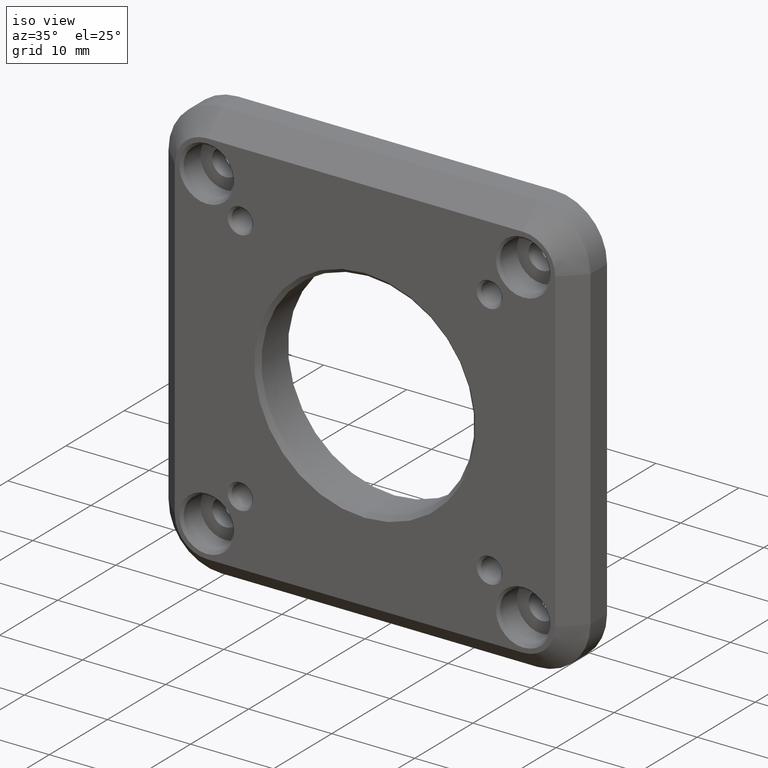
[diagram: clean part render]
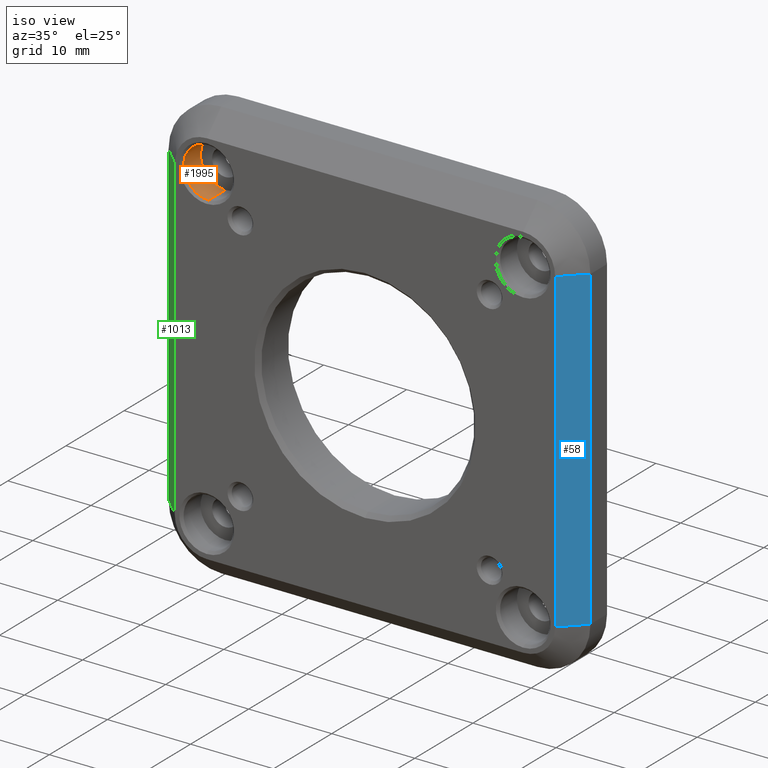
[diagram: same view with three faces highlighted in distinct colors, each labeled with its STEP entity id]
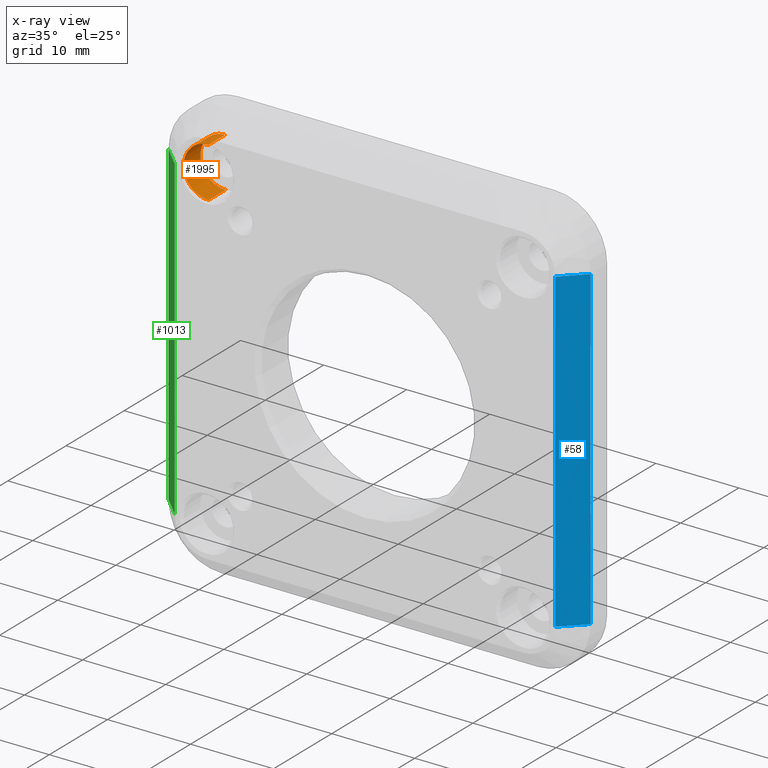
[diagram: x-ray of the same camera — body ghosted, the three highlighted faces saturated]
A machine part, iso view with three faces highlighted in distinct colors.
The next image is the same camera in x-ray (body ghosted, the three faces saturated) — at least one of them is partly hidden behind the body in this view.
Their STEP definitions:

[orange] entity #1995 — the highlighted cylindrical surface (edge-blend (fillet) strip) has radius 3 mm, axis along (-0, -1, -0).
#48 = DIRECTION ( 'NONE',  ( -0.000000000000000000, -1.000000000000000000, -0.000000000000000000 ) ) ;
#61 = CARTESIAN_POINT ( 'NONE',  ( -19.05000000000000071, 0.000000000000000000, 16.05000000000000426 ) ) ;
#78 = ORIENTED_EDGE ( 'NONE', *, *, #80, .T. ) ;
#80 = EDGE_CURVE ( 'NONE', #612, #3253, #782, .T. ) ;
#81 = VECTOR ( 'NONE', #3507, 1000.000000000000000 ) ;
#396 = ORIENTED_EDGE ( 'NONE', *, *, #1166, .T. ) ;
#434 = CARTESIAN_POINT ( 'NONE',  ( -19.05000000000000071, 0.000000000000000000, 22.04999999999999716 ) ) ;
#527 = CIRCLE ( 'NONE', #3197, 2.999999999999995559 ) ;
#612 = VERTEX_POINT ( 'NONE', #1746 ) ;
#782 = CIRCLE ( 'NONE', #3192, 2.999999999999995559 ) ;
#898 = LINE ( 'NONE', #61, #81 ) ;
#930 = CARTESIAN_POINT ( 'NONE',  ( -19.05000000000000071, 0.000000000000000000, 19.05000000000000071 ) ) ;
#1000 = EDGE_CURVE ( 'NONE', #3950, #3253, #898, .T. ) ;
#1166 = EDGE_CURVE ( 'NONE', #3105, #612, #2849, .T. ) ;
#1550 = AXIS2_PLACEMENT_3D ( 'NONE', #930, #48, #4055 ) ;
#1579 = CYLINDRICAL_SURFACE ( 'NONE', #1550, 2.999999999999995559 ) ;
#1735 = EDGE_LOOP ( 'NONE', ( #3653, #396, #78, #3225 ) ) ;
#1737 = DIRECTION ( 'NONE',  ( 0.000000000000000000, 0.000000000000000000, -1.000000000000000000 ) ) ;
#1746 = CARTESIAN_POINT ( 'NONE',  ( -19.05000000000000071, 0.3000000000000116462, 22.04999999999999716 ) ) ;
#1777 = DIRECTION ( 'NONE',  ( -0.000000000000000000, -1.000000000000000000, -0.000000000000000000 ) ) ;
#1828 = DIRECTION ( 'NONE',  ( 0.000000000000000000, -1.000000000000000000, 0.000000000000000000 ) ) ;
#1995 = ADVANCED_FACE ( 'NONE', ( #2982 ), #1579, .F. ) ;
#2163 = DIRECTION ( 'NONE',  ( 0.000000000000000000, 0.000000000000000000, 1.000000000000000000 ) ) ;
#2547 = CARTESIAN_POINT ( 'NONE',  ( -19.05000000000000071, 3.200000000000001510, 22.04999999999999716 ) ) ;
#2849 = LINE ( 'NONE', #434, #3982 ) ;
#2982 = FACE_OUTER_BOUND ( 'NONE', #1735, .T. ) ;
#3000 = CARTESIAN_POINT ( 'NONE',  ( -19.05000000000000071, 3.200000000000001510, 16.05000000000000426 ) ) ;
#3105 = VERTEX_POINT ( 'NONE', #2547 ) ;
#3177 = EDGE_CURVE ( 'NONE', #3105, #3950, #527, .T. ) ;
#3192 = AXIS2_PLACEMENT_3D ( 'NONE', #3384, #1828, #2163 ) ;
#3197 = AXIS2_PLACEMENT_3D ( 'NONE', #3627, #1777, #1737 ) ;
#3225 = ORIENTED_EDGE ( 'NONE', *, *, #1000, .F. ) ;
#3250 = CARTESIAN_POINT ( 'NONE',  ( -19.05000000000000071, 0.3000000000000116462, 16.05000000000000426 ) ) ;
#3253 = VERTEX_POINT ( 'NONE', #3250 ) ;
#3384 = CARTESIAN_POINT ( 'NONE',  ( -19.05000000000000071, 0.3000000000000116462, 19.05000000000000071 ) ) ;
#3507 = DIRECTION ( 'NONE',  ( -0.000000000000000000, -1.000000000000000000, -0.000000000000000000 ) ) ;
#3627 = CARTESIAN_POINT ( 'NONE',  ( -19.05000000000000071, 3.200000000000001510, 19.05000000000000071 ) ) ;
#3653 = ORIENTED_EDGE ( 'NONE', *, *, #3177, .F. ) ;
#3881 = DIRECTION ( 'NONE',  ( -0.000000000000000000, -1.000000000000000000, -0.000000000000000000 ) ) ;
#3950 = VERTEX_POINT ( 'NONE', #3000 ) ;
#3982 = VECTOR ( 'NONE', #3881, 1000.000000000000000 ) ;
#4055 = DIRECTION ( 'NONE',  ( 0.000000000000000000, 0.000000000000000000, -1.000000000000000000 ) ) ;

[blue] entity #58 — the highlighted planar face has unit normal (-0.7071, 0.7071, 0).
#58 = ADVANCED_FACE ( 'NONE', ( #1532 ), #3313, .F. ) ;
#59 = DIRECTION ( 'NONE',  ( -0.7071067811865489050, -0.7071067811865462405, 1.287805494327245209E-16 ) ) ;
#128 = LINE ( 'NONE', #3805, #358 ) ;
#254 = CARTESIAN_POINT ( 'NONE',  ( 22.89999999999999503, 0.000000000000000000, -19.04999999999999716 ) ) ;
#358 = VECTOR ( 'NONE', #59, 999.9999999999998863 ) ;
#453 = ORIENTED_EDGE ( 'NONE', *, *, #3297, .F. ) ;
#613 = CARTESIAN_POINT ( 'NONE',  ( 22.90000000000000213, 1.734723475976801178E-15, 19.05000000000000782 ) ) ;
#614 = ORIENTED_EDGE ( 'NONE', *, *, #3529, .T. ) ;
#638 = LINE ( 'NONE', #3470, #1590 ) ;
#927 = VECTOR ( 'NONE', #3392, 1000.000000000000000 ) ;
#936 = VERTEX_POINT ( 'NONE', #1887 ) ;
#1054 = LINE ( 'NONE', #613, #1505 ) ;
#1088 = VERTEX_POINT ( 'NONE', #2532 ) ;
#1493 = VERTEX_POINT ( 'NONE', #3480 ) ;
#1505 = VECTOR ( 'NONE', #4044, 1000.000000000000000 ) ;
#1518 = CARTESIAN_POINT ( 'NONE',  ( 22.89999999999999503, 0.000000000000000000, -19.04999999999999716 ) ) ;
#1532 = FACE_OUTER_BOUND ( 'NONE', #2709, .T. ) ;
#1564 = VERTEX_POINT ( 'NONE', #2263 ) ;
#1577 = EDGE_CURVE ( 'NONE', #936, #1088, #638, .T. ) ;
#1590 = VECTOR ( 'NONE', #1604, 1000.000000000000000 ) ;
#1604 = DIRECTION ( 'NONE',  ( 1.365923996832131609E-16, -4.553079989440418360E-17, 1.000000000000000000 ) ) ;
#1787 = AXIS2_PLACEMENT_3D ( 'NONE', #1518, #4027, #3702 ) ;
#1887 = CARTESIAN_POINT ( 'NONE',  ( 25.39999999999999858, 2.499999999999993783, -19.04999999999999716 ) ) ;
#1892 = EDGE_CURVE ( 'NONE', #1564, #1493, #2119, .T. ) ;
#2119 = LINE ( 'NONE', #254, #927 ) ;
#2263 = CARTESIAN_POINT ( 'NONE',  ( 22.89999999999999503, 0.000000000000000000, -19.04999999999999716 ) ) ;
#2532 = CARTESIAN_POINT ( 'NONE',  ( 25.40000000000000213, 2.499999999999989342, 19.05000000000000782 ) ) ;
#2709 = EDGE_LOOP ( 'NONE', ( #3708, #614, #3665, #453 ) ) ;
#3297 = EDGE_CURVE ( 'NONE', #936, #1564, #128, .T. ) ;
#3313 = PLANE ( 'NONE',  #1787 ) ;
#3392 = DIRECTION ( 'NONE',  ( 1.821231995776174986E-16, 0.000000000000000000, 1.000000000000000000 ) ) ;
#3470 = CARTESIAN_POINT ( 'NONE',  ( 25.39999999999999503, 2.499999999999991118, -25.39999999999999503 ) ) ;
#3480 = CARTESIAN_POINT ( 'NONE',  ( 22.90000000000000213, 0.000000000000000000, 19.05000000000000782 ) ) ;
#3529 = EDGE_CURVE ( 'NONE', #1088, #1493, #1054, .T. ) ;
#3665 = ORIENTED_EDGE ( 'NONE', *, *, #1892, .F. ) ;
#3702 = DIRECTION ( 'NONE',  ( -0.7071067811865489050, -0.7071067811865462405, 0.000000000000000000 ) ) ;
#3708 = ORIENTED_EDGE ( 'NONE', *, *, #1577, .T. ) ;
#3805 = CARTESIAN_POINT ( 'NONE',  ( 22.89999999999999503, 0.000000000000000000, -19.04999999999999716 ) ) ;
#4027 = DIRECTION ( 'NONE',  ( -0.7071067811865462405, 0.7071067811865489050, 1.287805494327240771E-16 ) ) ;
#4044 = DIRECTION ( 'NONE',  ( -0.7071067811865489050, -0.7071067811865462405, -0.000000000000000000 ) ) ;

[green] entity #1013 — the highlighted planar face has unit normal (0.7071, 0.7071, -0).
#52 = CARTESIAN_POINT ( 'NONE',  ( -22.89999999999999503, 0.000000000000000000, 19.05000000000000782 ) ) ;
#66 = EDGE_LOOP ( 'NONE', ( #1439, #3380, #3210, #2851 ) ) ;
#202 = VECTOR ( 'NONE', #458, 1000.000000000000000 ) ;
#246 = LINE ( 'NONE', #685, #746 ) ;
#339 = CARTESIAN_POINT ( 'NONE',  ( -25.40000000000000213, 2.499999999999988454, -25.39999999999999503 ) ) ;
#458 = DIRECTION ( 'NONE',  ( 0.7071067811865489050, -0.7071067811865462405, -0.000000000000000000 ) ) ;
#636 = CARTESIAN_POINT ( 'NONE',  ( -22.90000000000000213, -0.000000000000000000, -19.04999999999999716 ) ) ;
#685 = CARTESIAN_POINT ( 'NONE',  ( -22.89999999999999503, 0.000000000000000000, 19.05000000000000782 ) ) ;
#746 = VECTOR ( 'NONE', #986, 999.9999999999998863 ) ;
#831 = VERTEX_POINT ( 'NONE', #52 ) ;
#916 = CARTESIAN_POINT ( 'NONE',  ( -25.40000000000000568, 2.499999999999992450, -19.04999999999999716 ) ) ;
#986 = DIRECTION ( 'NONE',  ( 0.7071067811865489050, -0.7071067811865462405, -1.287805494327245209E-16 ) ) ;
#1013 = ADVANCED_FACE ( 'NONE', ( #2565 ), #1383, .F. ) ;
#1092 = EDGE_CURVE ( 'NONE', #1310, #831, #246, .T. ) ;
#1297 = EDGE_CURVE ( 'NONE', #1886, #3639, #2229, .T. ) ;
#1310 = VERTEX_POINT ( 'NONE', #3266 ) ;
#1383 = PLANE ( 'NONE',  #3310 ) ;
#1439 = ORIENTED_EDGE ( 'NONE', *, *, #2833, .T. ) ;
#1610 = DIRECTION ( 'NONE',  ( -1.365923996832131609E-16, -4.553079989440418360E-17, -1.000000000000000000 ) ) ;
#1643 = EDGE_CURVE ( 'NONE', #831, #3639, #3784, .T. ) ;
#1707 = DIRECTION ( 'NONE',  ( -1.821231995776174986E-16, -0.000000000000000000, -1.000000000000000000 ) ) ;
#1886 = VERTEX_POINT ( 'NONE', #916 ) ;
#2229 = LINE ( 'NONE', #3284, #202 ) ;
#2230 = LINE ( 'NONE', #339, #2553 ) ;
#2334 = DIRECTION ( 'NONE',  ( 0.7071067811865462405, 0.7071067811865489050, -1.287805494327240771E-16 ) ) ;
#2553 = VECTOR ( 'NONE', #1610, 1000.000000000000000 ) ;
#2565 = FACE_OUTER_BOUND ( 'NONE', #66, .T. ) ;
#2642 = CARTESIAN_POINT ( 'NONE',  ( -22.89999999999999503, 0.000000000000000000, 19.05000000000000782 ) ) ;
#2678 = DIRECTION ( 'NONE',  ( -0.7071067811865489050, 0.7071067811865462405, 0.000000000000000000 ) ) ;
#2833 = EDGE_CURVE ( 'NONE', #1310, #1886, #2230, .T. ) ;
#2851 = ORIENTED_EDGE ( 'NONE', *, *, #1092, .F. ) ;
#2947 = CARTESIAN_POINT ( 'NONE',  ( -22.89999999999999503, 0.000000000000000000, 19.05000000000000782 ) ) ;
#3189 = VECTOR ( 'NONE', #1707, 1000.000000000000000 ) ;
#3210 = ORIENTED_EDGE ( 'NONE', *, *, #1643, .F. ) ;
#3266 = CARTESIAN_POINT ( 'NONE',  ( -25.39999999999999858, 2.499999999999992006, 19.05000000000000782 ) ) ;
#3284 = CARTESIAN_POINT ( 'NONE',  ( -22.90000000000000213, 0.000000000000000000, -19.04999999999999716 ) ) ;
#3310 = AXIS2_PLACEMENT_3D ( 'NONE', #2642, #2334, #2678 ) ;
#3380 = ORIENTED_EDGE ( 'NONE', *, *, #1297, .T. ) ;
#3639 = VERTEX_POINT ( 'NONE', #636 ) ;
#3784 = LINE ( 'NONE', #2947, #3189 ) ;